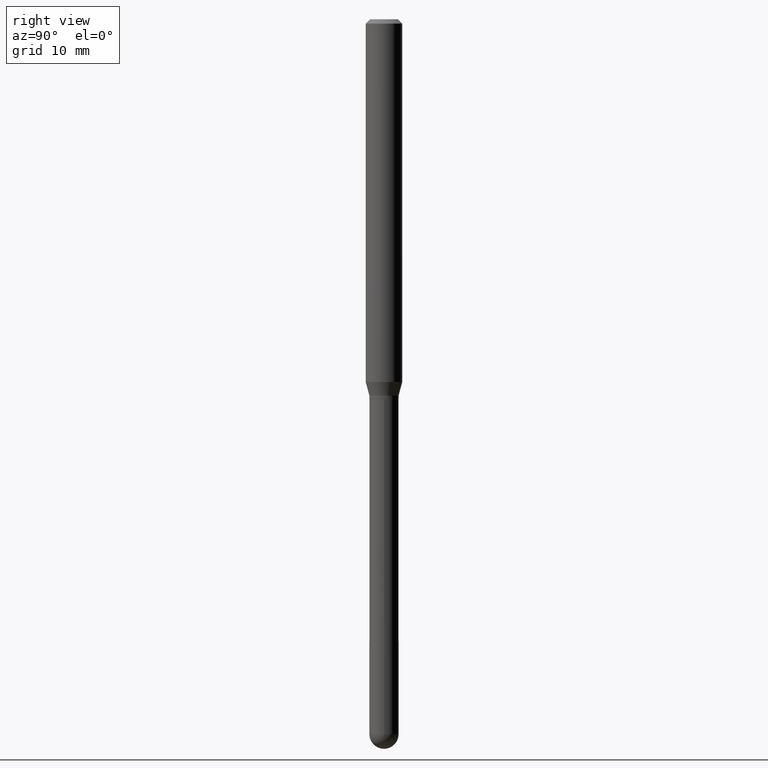
[diagram: clean part render]
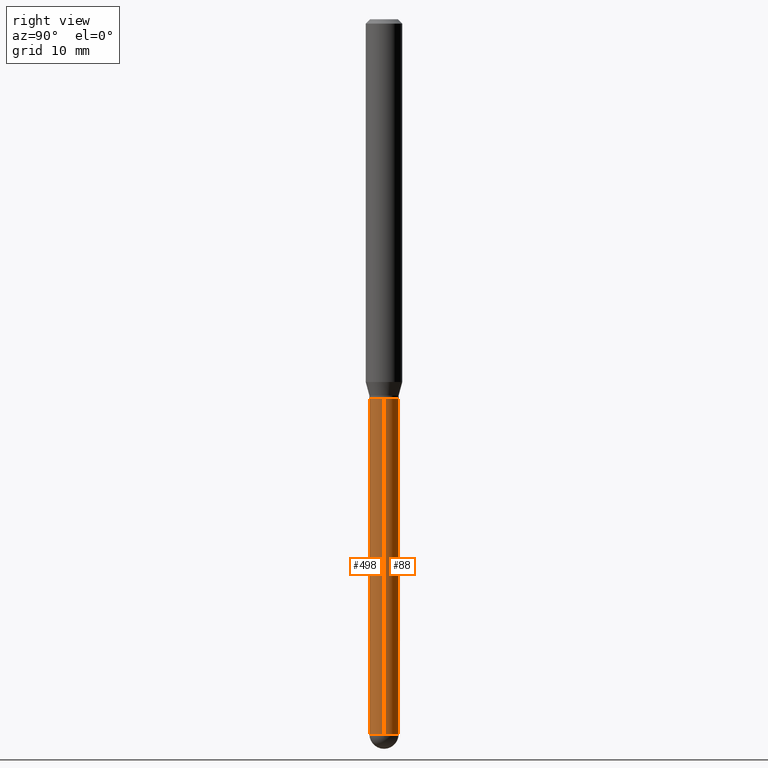
[diagram: same view with one multi-face feature highlighted, each face labeled with its STEP entity id]
A machine part, right view. The highlighted faces form ONE feature: a constant-radius fillet chain: 2 tangent blend faces with common blend radius 1.27 mm. The faces share edges in the B-rep.
Their STEP definitions:
[1] entity #88 (Cylinder):
#9 = VECTOR ( 'NONE', #153, 39.37007874015748143 ) ;
#13 = DIRECTION ( 'NONE',  ( 1.000000000000000000, -6.982962677686265922E-15, 4.876176775795936353E-29 ) ) ;
#16 = DIRECTION ( 'NONE',  ( -2.445468806185136597E-29, 3.491481338843145583E-15, 1.000000000000000000 ) ) ;
#33 = DIRECTION ( 'NONE',  ( -2.445468806185136597E-29, 3.491481338843145583E-15, 1.000000000000000000 ) ) ;
#37 = ORIENTED_EDGE ( 'NONE', *, *, #458, .T. ) ;
#87 = LINE ( 'NONE', #337, #231 ) ;
#88 = ADVANCED_FACE ( 'NONE', ( #373 ), #341, .T. ) ;
#111 = CIRCLE ( 'NONE', #271, 0.04999999999999999584 ) ;
#113 = EDGE_CURVE ( 'NONE', #234, #268, #87, .T. ) ;
#122 = CARTESIAN_POINT ( 'NONE',  ( 5.991398575153583765E-29, -8.554129280165706697E-15, -2.449999999999999734 ) ) ;
#129 = CARTESIAN_POINT ( 'NONE',  ( 3.491481338843731903E-16, 0.04999999999999144018, -2.450000000000000178 ) ) ;
#145 = VERTEX_POINT ( 'NONE', #129 ) ;
#153 = DIRECTION ( 'NONE',  ( -2.445468806185136877E-29, 3.491481338843145188E-15, 1.000000000000000000 ) ) ;
#159 = AXIS2_PLACEMENT_3D ( 'NONE', #380, #16, #13 ) ;
#166 = ORIENTED_EDGE ( 'NONE', *, *, #305, .T. ) ;
#186 = CARTESIAN_POINT ( 'NONE',  ( 0.05000000000000000278, -4.888073874380404052E-15, -1.300000000000000266 ) ) ;
#190 = CARTESIAN_POINT ( 'NONE',  ( -0.05000000000000000278, -6.191256142450848298E-15, -1.300000000000000266 ) ) ;
#222 = VERTEX_POINT ( 'NONE', #190 ) ;
#231 = VECTOR ( 'NONE', #485, 39.37007874015748143 ) ;
#234 = VERTEX_POINT ( 'NONE', #418 ) ;
#268 = VERTEX_POINT ( 'NONE', #186 ) ;
#271 = AXIS2_PLACEMENT_3D ( 'NONE', #122, #326, #401 ) ;
#277 = ORIENTED_EDGE ( 'NONE', *, *, #113, .F. ) ;
#279 = CARTESIAN_POINT ( 'NONE',  ( -0.04999999999999999584, -6.191256142450848298E-15, -2.449999999999999734 ) ) ;
#285 = CARTESIAN_POINT ( 'NONE',  ( 5.991398575153583765E-29, -8.554129280165706697E-15, -2.449999999999999734 ) ) ;
#287 = ORIENTED_EDGE ( 'NONE', *, *, #378, .T. ) ;
#295 = AXIS2_PLACEMENT_3D ( 'NONE', #285, #33, #362 ) ;
#304 = CIRCLE ( 'NONE', #370, 0.05000000000000000278 ) ;
#305 = EDGE_CURVE ( 'NONE', #428, #222, #506, .T. ) ;
#307 = EDGE_LOOP ( 'NONE', ( #287, #166, #318, #277, #37 ) ) ;
#318 = ORIENTED_EDGE ( 'NONE', *, *, #358, .F. ) ;
#319 = CARTESIAN_POINT ( 'NONE',  ( -0.04999999999999999584, 3.552713678800500634E-16, -2.459467545127452961E-30 ) ) ;
#323 = CIRCLE ( 'NONE', #295, 0.04999999999999999584 ) ;
#326 = DIRECTION ( 'NONE',  ( -2.445468806185136597E-29, 3.491481338843145583E-15, 1.000000000000000000 ) ) ;
#337 = CARTESIAN_POINT ( 'NONE',  ( 0.04999999999999999584, -3.491481338843132862E-16, 2.438088387897967896E-30 ) ) ;
#341 = CYLINDRICAL_SURFACE ( 'NONE', #159, 0.04999999999999999584 ) ;
#358 = EDGE_CURVE ( 'NONE', #268, #222, #304, .T. ) ;
#362 = DIRECTION ( 'NONE',  ( 1.000000000000000000, -6.982962677686255667E-15, 0.000000000000000000 ) ) ;
#370 = AXIS2_PLACEMENT_3D ( 'NONE', #509, #399, #466 ) ;
#373 = FACE_OUTER_BOUND ( 'NONE', #307, .T. ) ;
#378 = EDGE_CURVE ( 'NONE', #145, #428, #323, .T. ) ;
#380 = CARTESIAN_POINT ( 'NONE',  ( 0.000000000000000000, 0.000000000000000000, 0.000000000000000000 ) ) ;
#399 = DIRECTION ( 'NONE',  ( -2.445468806185136597E-29, 3.491481338843145583E-15, 1.000000000000000000 ) ) ;
#401 = DIRECTION ( 'NONE',  ( 1.000000000000000000, -6.982962677686255667E-15, 0.000000000000000000 ) ) ;
#418 = CARTESIAN_POINT ( 'NONE',  ( 0.04999999999999999584, -6.895675644215211254E-15, -2.449999999999999734 ) ) ;
#428 = VERTEX_POINT ( 'NONE', #279 ) ;
#458 = EDGE_CURVE ( 'NONE', #234, #145, #111, .T. ) ;
#466 = DIRECTION ( 'NONE',  ( 1.000000000000000000, -6.982962677686274599E-15, 0.000000000000000000 ) ) ;
#485 = DIRECTION ( 'NONE',  ( -2.445468806185136877E-29, 3.491481338843145188E-15, 1.000000000000000000 ) ) ;
#506 = LINE ( 'NONE', #319, #9 ) ;
#509 = CARTESIAN_POINT ( 'NONE',  ( 3.179109448040678473E-29, -4.538925740496089928E-15, -1.300000000000000266 ) ) ;
[2] entity #498 (Cylinder):
#3 = EDGE_LOOP ( 'NONE', ( #430, #246, #196, #200, #5 ) ) ;
#5 = ORIENTED_EDGE ( 'NONE', *, *, #476, .F. ) ;
#8 = VERTEX_POINT ( 'NONE', #127 ) ;
#9 = VECTOR ( 'NONE', #153, 39.37007874015748143 ) ;
#28 = EDGE_CURVE ( 'NONE', #428, #8, #486, .T. ) ;
#58 = DIRECTION ( 'NONE',  ( -2.445468806185136597E-29, 3.491481338843145583E-15, 1.000000000000000000 ) ) ;
#78 = DIRECTION ( 'NONE',  ( 1.000000000000000000, -6.982962677686274599E-15, 0.000000000000000000 ) ) ;
#84 = DIRECTION ( 'NONE',  ( 1.000000000000000000, -6.982962677686265922E-15, 4.876176775795936353E-29 ) ) ;
#86 = AXIS2_PLACEMENT_3D ( 'NONE', #474, #436, #78 ) ;
#87 = LINE ( 'NONE', #337, #231 ) ;
#90 = DIRECTION ( 'NONE',  ( -2.445468806185136597E-29, 3.491481338843145583E-15, 1.000000000000000000 ) ) ;
#113 = EDGE_CURVE ( 'NONE', #234, #268, #87, .T. ) ;
#127 = CARTESIAN_POINT ( 'NONE',  ( -3.552713678799901099E-16, -0.05000000000000856537, -2.449999999999999734 ) ) ;
#148 = DIRECTION ( 'NONE',  ( 1.000000000000000000, -6.982962677686255667E-15, 0.000000000000000000 ) ) ;
#153 = DIRECTION ( 'NONE',  ( -2.445468806185136877E-29, 3.491481338843145188E-15, 1.000000000000000000 ) ) ;
#168 = CARTESIAN_POINT ( 'NONE',  ( 0.000000000000000000, 0.000000000000000000, 0.000000000000000000 ) ) ;
#170 = AXIS2_PLACEMENT_3D ( 'NONE', #443, #296, #376 ) ;
#186 = CARTESIAN_POINT ( 'NONE',  ( 0.05000000000000000278, -4.888073874380404052E-15, -1.300000000000000266 ) ) ;
#190 = CARTESIAN_POINT ( 'NONE',  ( -0.05000000000000000278, -6.191256142450848298E-15, -1.300000000000000266 ) ) ;
#196 = ORIENTED_EDGE ( 'NONE', *, *, #240, .T. ) ;
#200 = ORIENTED_EDGE ( 'NONE', *, *, #113, .T. ) ;
#208 = AXIS2_PLACEMENT_3D ( 'NONE', #168, #90, #84 ) ;
#221 = CARTESIAN_POINT ( 'NONE',  ( 5.991398575153583765E-29, -8.554129280165706697E-15, -2.449999999999999734 ) ) ;
#222 = VERTEX_POINT ( 'NONE', #190 ) ;
#231 = VECTOR ( 'NONE', #485, 39.37007874015748143 ) ;
#234 = VERTEX_POINT ( 'NONE', #418 ) ;
#240 = EDGE_CURVE ( 'NONE', #8, #234, #470, .T. ) ;
#244 = AXIS2_PLACEMENT_3D ( 'NONE', #221, #58, #148 ) ;
#246 = ORIENTED_EDGE ( 'NONE', *, *, #28, .T. ) ;
#268 = VERTEX_POINT ( 'NONE', #186 ) ;
#279 = CARTESIAN_POINT ( 'NONE',  ( -0.04999999999999999584, -6.191256142450848298E-15, -2.449999999999999734 ) ) ;
#296 = DIRECTION ( 'NONE',  ( -2.445468806185136597E-29, 3.491481338843145583E-15, 1.000000000000000000 ) ) ;
#305 = EDGE_CURVE ( 'NONE', #428, #222, #506, .T. ) ;
#319 = CARTESIAN_POINT ( 'NONE',  ( -0.04999999999999999584, 3.552713678800500634E-16, -2.459467545127452961E-30 ) ) ;
#337 = CARTESIAN_POINT ( 'NONE',  ( 0.04999999999999999584, -3.491481338843132862E-16, 2.438088387897967896E-30 ) ) ;
#356 = FACE_OUTER_BOUND ( 'NONE', #3, .T. ) ;
#376 = DIRECTION ( 'NONE',  ( 1.000000000000000000, -6.982962677686255667E-15, 0.000000000000000000 ) ) ;
#403 = CYLINDRICAL_SURFACE ( 'NONE', #208, 0.04999999999999999584 ) ;
#418 = CARTESIAN_POINT ( 'NONE',  ( 0.04999999999999999584, -6.895675644215211254E-15, -2.449999999999999734 ) ) ;
#421 = CIRCLE ( 'NONE', #86, 0.05000000000000000278 ) ;
#428 = VERTEX_POINT ( 'NONE', #279 ) ;
#430 = ORIENTED_EDGE ( 'NONE', *, *, #305, .F. ) ;
#436 = DIRECTION ( 'NONE',  ( -2.445468806185136597E-29, 3.491481338843145583E-15, 1.000000000000000000 ) ) ;
#443 = CARTESIAN_POINT ( 'NONE',  ( 5.991398575153583765E-29, -8.554129280165706697E-15, -2.449999999999999734 ) ) ;
#470 = CIRCLE ( 'NONE', #244, 0.04999999999999999584 ) ;
#474 = CARTESIAN_POINT ( 'NONE',  ( 3.179109448040678473E-29, -4.538925740496089928E-15, -1.300000000000000266 ) ) ;
#476 = EDGE_CURVE ( 'NONE', #222, #268, #421, .T. ) ;
#485 = DIRECTION ( 'NONE',  ( -2.445468806185136877E-29, 3.491481338843145188E-15, 1.000000000000000000 ) ) ;
#486 = CIRCLE ( 'NONE', #170, 0.04999999999999999584 ) ;
#498 = ADVANCED_FACE ( 'NONE', ( #356 ), #403, .T. ) ;
#506 = LINE ( 'NONE', #319, #9 ) ;